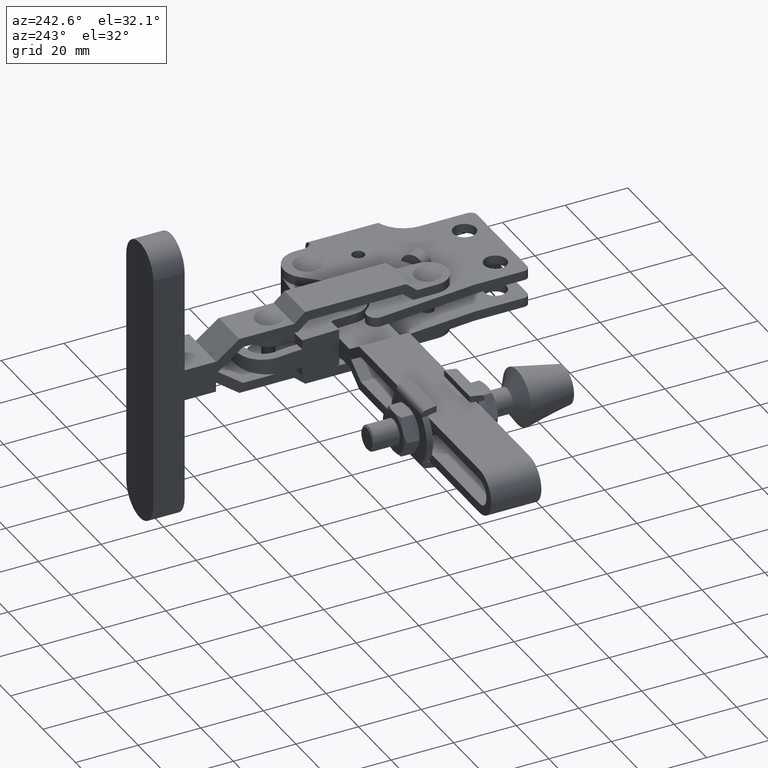
[diagram: clean part render]
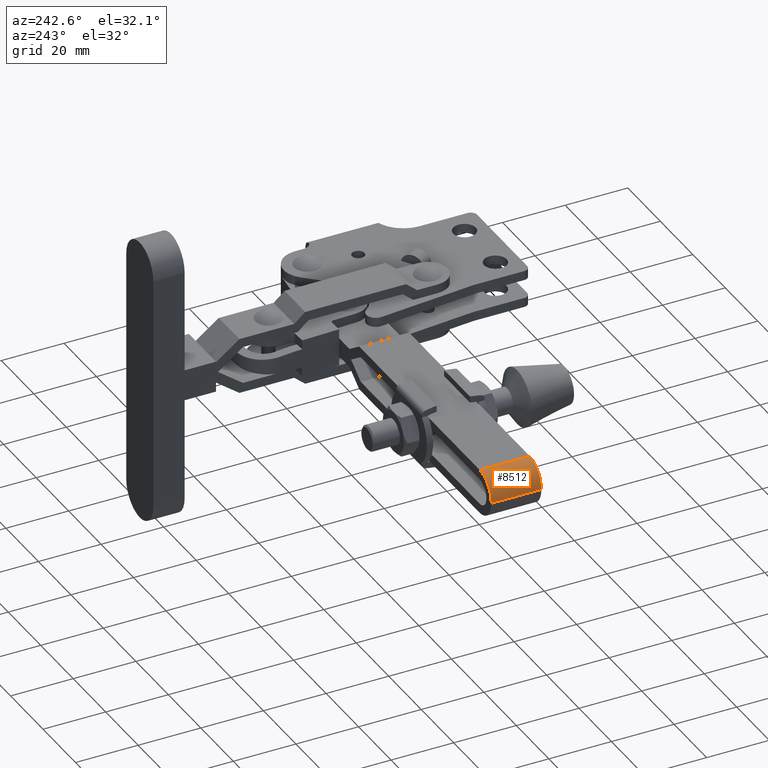
[diagram: same view with one face highlighted and labeled with its STEP entity id]
A machine part, auxiliary view. The second image highlights one B-rep face of the part: STEP entity #8512.
In plain terms, the highlighted cylindrical surface (edge-blend (fillet) strip) has radius 7.15 mm, axis along (0, 1, 0).
Its self-contained STEP definition (entity closure, byte-faithful):
#463 = CYLINDRICAL_SURFACE ( 'NONE', #1505, 7.150000000000044800 ) ;
#725 = ORIENTED_EDGE ( 'NONE', *, *, #2586, .F. ) ;
#1343 = CARTESIAN_POINT ( 'NONE',  ( -141.0000000000000600, 31.79999999999999400, -6.488032652453734600E-015 ) ) ;
#1505 = AXIS2_PLACEMENT_3D ( 'NONE', #8772, #3349, #10603 ) ;
#1549 = CARTESIAN_POINT ( 'NONE',  ( -133.8500000000000200, 29.30000000000023200, 7.150000000000035900 ) ) ;
#1557 = LINE ( 'NONE', #7310, #3968 ) ;
#1954 = VERTEX_POINT ( 'NONE', #5180 ) ;
#2076 = VERTEX_POINT ( 'NONE', #1343 ) ;
#2171 = CARTESIAN_POINT ( 'NONE',  ( -133.8499999999999700, 47.80000000000045200, 4.249781925278084400E-015 ) ) ;
#2180 = ORIENTED_EDGE ( 'NONE', *, *, #8729, .F. ) ;
#2333 = CARTESIAN_POINT ( 'NONE',  ( -133.8500000000000200, 31.79999999999999400, 4.199379765434539400E-015 ) ) ;
#2586 = EDGE_CURVE ( 'NONE', #3305, #1954, #8941, .T. ) ;
#3075 = VECTOR ( 'NONE', #9737, 1000.000000000000000 ) ;
#3077 = CARTESIAN_POINT ( 'NONE',  ( -133.8500000000000200, 31.79999999999999400, 7.150000000000227700 ) ) ;
#3082 = DIRECTION ( 'NONE',  ( -1.000000000000000000, 3.881898687500523100E-015, -1.498267622071322400E-015 ) ) ;
#3254 = DIRECTION ( 'NONE',  ( 1.000000000000000000, 0.0000000000000000000, 1.498267622071322400E-015 ) ) ;
#3305 = VERTEX_POINT ( 'NONE', #6287 ) ;
#3349 = DIRECTION ( 'NONE',  ( 2.264898338322218800E-015, 1.000000000000000000, 3.150134990220454100E-018 ) ) ;
#3968 = VECTOR ( 'NONE', #5471, 1000.000000000000000 ) ;
#5180 = CARTESIAN_POINT ( 'NONE',  ( -133.8499999999999700, 47.80000000000045200, 7.150000000000227700 ) ) ;
#5471 = DIRECTION ( 'NONE',  ( 2.264898338322218800E-015, 1.000000000000000000, 3.150134990220453800E-018 ) ) ;
#5474 = LINE ( 'NONE', #1549, #3075 ) ;
#5635 = ORIENTED_EDGE ( 'NONE', *, *, #10183, .T. ) ;
#6287 = CARTESIAN_POINT ( 'NONE',  ( -141.0000000000000000, 47.80000000000048000, -6.488032652453692800E-015 ) ) ;
#6976 = AXIS2_PLACEMENT_3D ( 'NONE', #2171, #8501, #3082 ) ;
#7310 = CARTESIAN_POINT ( 'NONE',  ( -141.0000000000000600, 29.30000000000024900, -6.521109069851027700E-015 ) ) ;
#7672 = FACE_OUTER_BOUND ( 'NONE', #8712, .T. ) ;
#7986 = ORIENTED_EDGE ( 'NONE', *, *, #11561, .F. ) ;
#8501 = DIRECTION ( 'NONE',  ( 4.081963296954256900E-015, 1.000000000000000000, 3.150134990220466500E-018 ) ) ;
#8512 = ADVANCED_FACE ( 'NONE', ( #7672 ), #463, .T. ) ;
#8673 = DIRECTION ( 'NONE',  ( 1.227425735034547700E-016, -1.000000000000000000, -3.150134990220436800E-018 ) ) ;
#8712 = EDGE_LOOP ( 'NONE', ( #2180, #7986, #5635, #725 ) ) ;
#8729 = EDGE_CURVE ( 'NONE', #2076, #3305, #1557, .T. ) ;
#8772 = CARTESIAN_POINT ( 'NONE',  ( -133.8500000000000200, 29.30000000000023200, 4.191504427958993900E-015 ) ) ;
#8941 = CIRCLE ( 'NONE', #6976, 7.150000000000044800 ) ;
#9633 = CIRCLE ( 'NONE', #9893, 7.150000000000044800 ) ;
#9737 = DIRECTION ( 'NONE',  ( 2.264898338322218800E-015, 1.000000000000000000, 3.150134990220453800E-018 ) ) ;
#9893 = AXIS2_PLACEMENT_3D ( 'NONE', #2333, #8673, #3254 ) ;
#10093 = VERTEX_POINT ( 'NONE', #3077 ) ;
#10183 = EDGE_CURVE ( 'NONE', #10093, #1954, #5474, .T. ) ;
#10603 = DIRECTION ( 'NONE',  ( -1.000000000000000000, 2.426186679687826700E-015, -1.498267622071322400E-015 ) ) ;
#11561 = EDGE_CURVE ( 'NONE', #10093, #2076, #9633, .T. ) ;